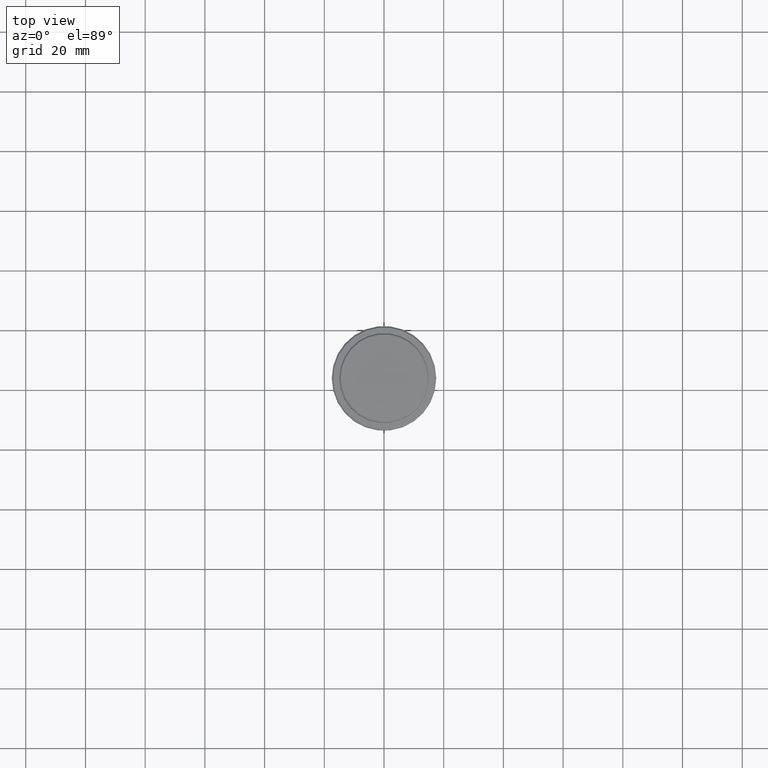
[diagram: clean part render]
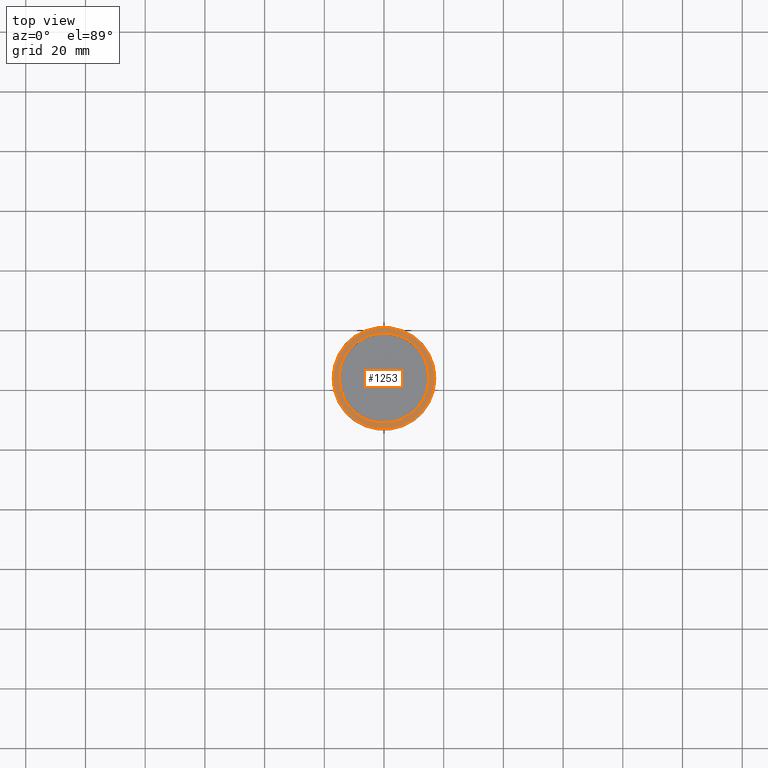
[diagram: same view with one face highlighted and labeled with its STEP entity id]
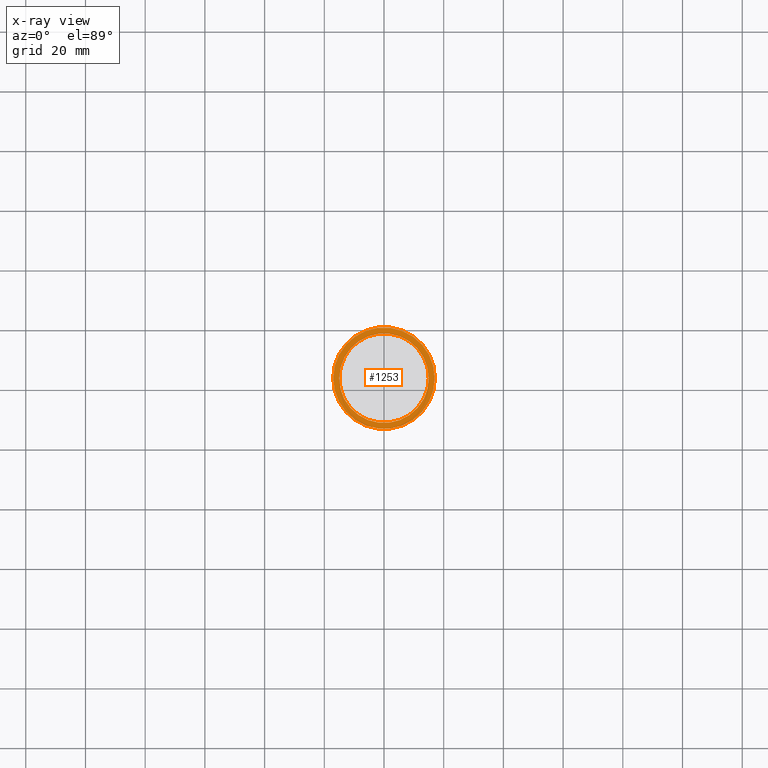
[diagram: x-ray of the same camera — body ghosted, the highlighted face saturated]
A machine part, top view. The second image highlights one B-rep face of the part: STEP entity #1253.
The next image is the same camera in x-ray: the body ghosted, the highlighted face saturated — about 0% of this face is hidden behind the body in this view.
In plain terms, the highlighted planar face has unit normal (0, -0, 1).
Its self-contained STEP definition (entity closure, byte-faithful):
#4 = AXIS2_PLACEMENT_3D ( 'NONE', #983, #1323, #791 ) ;
#8 = AXIS2_PLACEMENT_3D ( 'NONE', #1273, #1045, #57 ) ;
#45 = VERTEX_POINT ( 'NONE', #1232 ) ;
#57 = DIRECTION ( 'NONE',  ( 1.000000000000000000, 0.000000000000000000, 0.000000000000000000 ) ) ;
#109 = DIRECTION ( 'NONE',  ( -0.000000000000000000, -0.000000000000000000, 1.000000000000000000 ) ) ;
#137 = CARTESIAN_POINT ( 'NONE',  ( 0.000000000000000000, 0.000000000000000000, -9.000000000000000000 ) ) ;
#151 = EDGE_LOOP ( 'NONE', ( #404, #396 ) ) ;
#171 = AXIS2_PLACEMENT_3D ( 'NONE', #1385, #109, #964 ) ;
#232 = ORIENTED_EDGE ( 'NONE', *, *, #1389, .T. ) ;
#290 = DIRECTION ( 'NONE',  ( 1.000000000000000000, 0.000000000000000000, 0.000000000000000000 ) ) ;
#339 = DIRECTION ( 'NONE',  ( 0.000000000000000000, 0.000000000000000000, -1.000000000000000000 ) ) ;
#383 = AXIS2_PLACEMENT_3D ( 'NONE', #137, #339, #573 ) ;
#384 = CARTESIAN_POINT ( 'NONE',  ( 17.00000000000001421, 2.112515728529185250E-15, -9.000000000000000000 ) ) ;
#396 = ORIENTED_EDGE ( 'NONE', *, *, #963, .T. ) ;
#404 = ORIENTED_EDGE ( 'NONE', *, *, #1127, .T. ) ;
#495 = EDGE_LOOP ( 'NONE', ( #618, #232 ) ) ;
#555 = CARTESIAN_POINT ( 'NONE',  ( -14.99999999999999289, 1.836970198721028800E-15, -9.000000000000000000 ) ) ;
#559 = CIRCLE ( 'NONE', #4, 17.00000000000001421 ) ;
#573 = DIRECTION ( 'NONE',  ( 1.000000000000000000, 0.000000000000000000, 0.000000000000000000 ) ) ;
#586 = DIRECTION ( 'NONE',  ( 0.000000000000000000, -0.000000000000000000, 1.000000000000000000 ) ) ;
#608 = CARTESIAN_POINT ( 'NONE',  ( -17.00000000000001421, 0.000000000000000000, -9.000000000000000000 ) ) ;
#618 = ORIENTED_EDGE ( 'NONE', *, *, #1181, .T. ) ;
#695 = CIRCLE ( 'NONE', #8, 14.99999999999999289 ) ;
#791 = DIRECTION ( 'NONE',  ( 1.000000000000000000, 0.000000000000000000, 0.000000000000000000 ) ) ;
#798 = FACE_BOUND ( 'NONE', #495, .T. ) ;
#831 = CIRCLE ( 'NONE', #383, 14.99999999999999289 ) ;
#900 = FACE_OUTER_BOUND ( 'NONE', #151, .T. ) ;
#963 = EDGE_CURVE ( 'NONE', #1321, #1288, #1175, .T. ) ;
#964 = DIRECTION ( 'NONE',  ( 1.000000000000000000, 0.000000000000000000, 0.000000000000000000 ) ) ;
#983 = CARTESIAN_POINT ( 'NONE',  ( 0.000000000000000000, 0.000000000000000000, -9.000000000000000000 ) ) ;
#1016 = AXIS2_PLACEMENT_3D ( 'NONE', #1052, #586, #290 ) ;
#1045 = DIRECTION ( 'NONE',  ( 0.000000000000000000, 0.000000000000000000, -1.000000000000000000 ) ) ;
#1052 = CARTESIAN_POINT ( 'NONE',  ( 0.000000000000000000, 14.49999999999999467, -9.000000000000000000 ) ) ;
#1120 = VERTEX_POINT ( 'NONE', #555 ) ;
#1127 = EDGE_CURVE ( 'NONE', #1288, #1321, #559, .T. ) ;
#1157 = PLANE ( 'NONE',  #1016 ) ;
#1175 = CIRCLE ( 'NONE', #171, 17.00000000000001421 ) ;
#1181 = EDGE_CURVE ( 'NONE', #45, #1120, #831, .T. ) ;
#1232 = CARTESIAN_POINT ( 'NONE',  ( 14.99999999999999289, 0.000000000000000000, -9.000000000000000000 ) ) ;
#1253 = ADVANCED_FACE ( 'NONE', ( #900, #798 ), #1157, .T. ) ;
#1273 = CARTESIAN_POINT ( 'NONE',  ( 0.000000000000000000, 0.000000000000000000, -9.000000000000000000 ) ) ;
#1288 = VERTEX_POINT ( 'NONE', #608 ) ;
#1321 = VERTEX_POINT ( 'NONE', #384 ) ;
#1323 = DIRECTION ( 'NONE',  ( -0.000000000000000000, -0.000000000000000000, 1.000000000000000000 ) ) ;
#1385 = CARTESIAN_POINT ( 'NONE',  ( 0.000000000000000000, 0.000000000000000000, -9.000000000000000000 ) ) ;
#1389 = EDGE_CURVE ( 'NONE', #1120, #45, #695, .T. ) ;